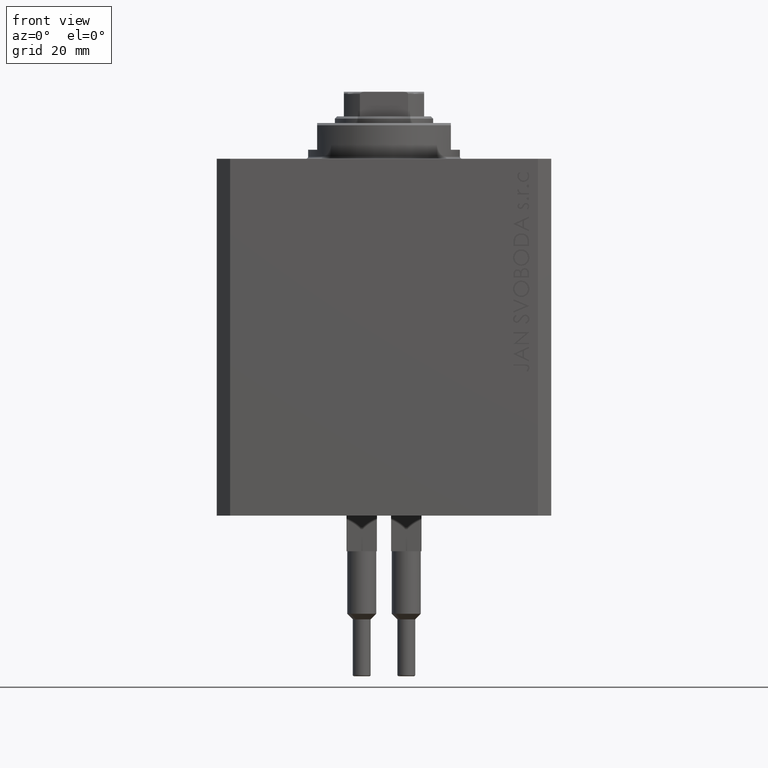
[diagram: clean part render]
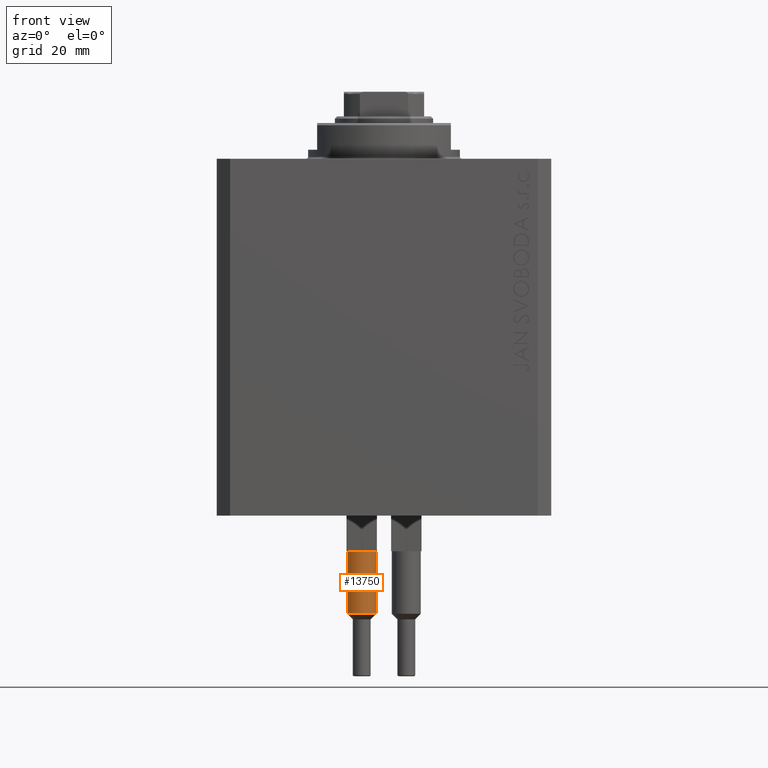
[diagram: same view with one face highlighted and labeled with its STEP entity id]
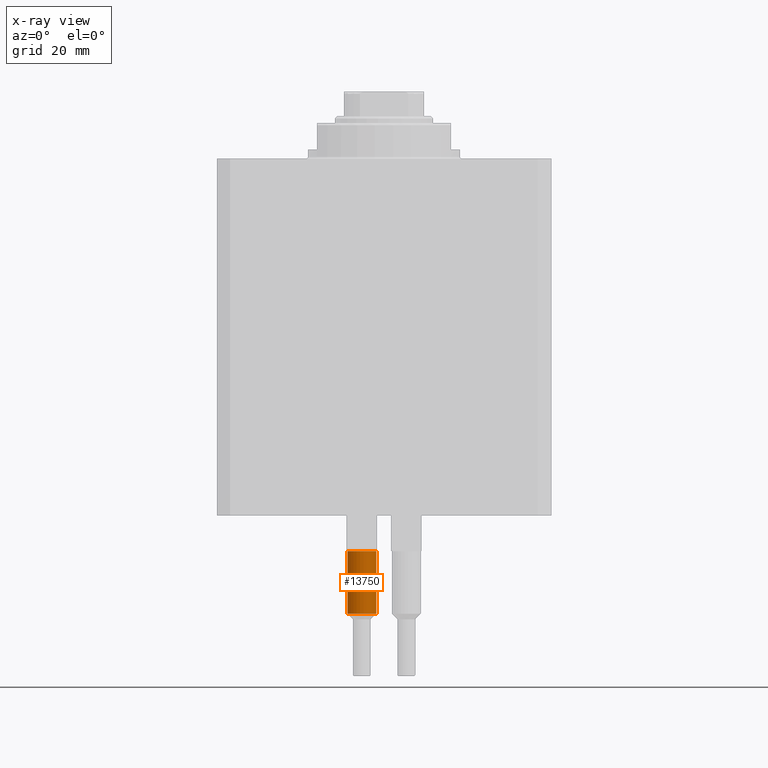
[diagram: x-ray of the same camera — body ghosted, the highlighted face saturated]
A machine part, front view. The second image highlights one B-rep face of the part: STEP entity #13750.
The next image is the same camera in x-ray: the body ghosted, the highlighted face saturated — about 0% of this face is hidden behind the body in this view.
In plain terms, the highlighted cylindrical surface (edge-blend (fillet) strip) has radius 3.25 mm, axis along (-0, -0, 1).
Its self-contained STEP definition (entity closure, byte-faithful):
#1194 = EDGE_CURVE ( 'NONE', #15151, #8644, #21680, .T. ) ;
#1338 = FACE_OUTER_BOUND ( 'NONE', #7800, .T. ) ;
#3413 = DIRECTION ( 'NONE',  ( 1.000000000000000000, 0.000000000000000000, 0.000000000000000000 ) ) ;
#3727 = CARTESIAN_POINT ( 'NONE',  ( 2.883140648667699146, 1.500000000000000000, 40.00000000000000000 ) ) ;
#4521 = VERTEX_POINT ( 'NONE', #8655 ) ;
#4988 = DIRECTION ( 'NONE',  ( -0.000000000000000000, -0.000000000000000000, -1.000000000000000000 ) ) ;
#5524 = AXIS2_PLACEMENT_3D ( 'NONE', #16406, #4988, #19807 ) ;
#6132 = VERTEX_POINT ( 'NONE', #22347 ) ;
#7800 = EDGE_LOOP ( 'NONE', ( #19464, #43533, #44097, #12180, #34972, #27262 ) ) ;
#8644 = VERTEX_POINT ( 'NONE', #44272 ) ;
#8655 = CARTESIAN_POINT ( 'NONE',  ( -3.250000000000000444, 0.000000000000000000, 53.99999999999998579 ) ) ;
#9127 = CARTESIAN_POINT ( 'NONE',  ( 0.000000000000000000, 0.000000000000000000, 40.00000000000000000 ) ) ;
#9413 = AXIS2_PLACEMENT_3D ( 'NONE', #9127, #26620, #19340 ) ;
#9945 = EDGE_CURVE ( 'NONE', #17519, #27907, #22599, .T. ) ;
#10594 = CARTESIAN_POINT ( 'NONE',  ( 0.000000000000000000, 0.000000000000000000, 40.00000000000000000 ) ) ;
#11070 = DIRECTION ( 'NONE',  ( 1.000000000000000000, 0.000000000000000000, 0.000000000000000000 ) ) ;
#12180 = ORIENTED_EDGE ( 'NONE', *, *, #9945, .T. ) ;
#13750 = ADVANCED_FACE ( 'NONE', ( #1338 ), #38251, .T. ) ;
#15151 = VERTEX_POINT ( 'NONE', #16534 ) ;
#16406 = CARTESIAN_POINT ( 'NONE',  ( 0.000000000000000000, 0.000000000000000000, 56.00000000000000000 ) ) ;
#16534 = CARTESIAN_POINT ( 'NONE',  ( 3.250000000000000444, 3.980102097228898231E-16, 53.99999999999998579 ) ) ;
#16843 = EDGE_CURVE ( 'NONE', #4521, #15151, #42074, .T. ) ;
#17519 = VERTEX_POINT ( 'NONE', #3727 ) ;
#17569 = DIRECTION ( 'NONE',  ( -0.000000000000000000, -0.000000000000000000, -1.000000000000000000 ) ) ;
#18205 = DIRECTION ( 'NONE',  ( 1.000000000000000000, 0.000000000000000000, 0.000000000000000000 ) ) ;
#19340 = DIRECTION ( 'NONE',  ( 1.000000000000000000, 0.000000000000000000, 0.000000000000000000 ) ) ;
#19464 = ORIENTED_EDGE ( 'NONE', *, *, #16843, .T. ) ;
#19807 = DIRECTION ( 'NONE',  ( -1.000000000000000000, 0.000000000000000000, 0.000000000000000000 ) ) ;
#20599 = LINE ( 'NONE', #24237, #47099 ) ;
#21196 = CARTESIAN_POINT ( 'NONE',  ( 3.250000000000000444, 3.980102097228898231E-16, 56.00000000000000000 ) ) ;
#21680 = LINE ( 'NONE', #21196, #46087 ) ;
#21746 = DIRECTION ( 'NONE',  ( 0.000000000000000000, 0.000000000000000000, 1.000000000000000000 ) ) ;
#22333 = DIRECTION ( 'NONE',  ( 0.000000000000000000, 0.000000000000000000, 1.000000000000000000 ) ) ;
#22347 = CARTESIAN_POINT ( 'NONE',  ( -3.250000000000000444, 0.000000000000000000, 40.00000000000000000 ) ) ;
#22599 = CIRCLE ( 'NONE', #9413, 3.250000000000000444 ) ;
#23017 = CIRCLE ( 'NONE', #31520, 3.250000000000000444 ) ;
#23030 = CARTESIAN_POINT ( 'NONE',  ( 0.000000000000000000, 0.000000000000000000, 53.99999999999998579 ) ) ;
#24237 = CARTESIAN_POINT ( 'NONE',  ( -3.250000000000000444, 0.000000000000000000, 56.00000000000000000 ) ) ;
#24240 = AXIS2_PLACEMENT_3D ( 'NONE', #23030, #45350, #3413 ) ;
#25803 = CARTESIAN_POINT ( 'NONE',  ( -2.883140648667699146, 1.500000000000000000, 40.00000000000000000 ) ) ;
#26620 = DIRECTION ( 'NONE',  ( 0.000000000000000000, 0.000000000000000000, 1.000000000000000000 ) ) ;
#27262 = ORIENTED_EDGE ( 'NONE', *, *, #34052, .F. ) ;
#27907 = VERTEX_POINT ( 'NONE', #25803 ) ;
#28709 = CIRCLE ( 'NONE', #43449, 3.250000000000000444 ) ;
#30492 = EDGE_CURVE ( 'NONE', #27907, #6132, #23017, .T. ) ;
#31520 = AXIS2_PLACEMENT_3D ( 'NONE', #10594, #21746, #11070 ) ;
#32759 = CARTESIAN_POINT ( 'NONE',  ( 0.000000000000000000, 0.000000000000000000, 40.00000000000000000 ) ) ;
#34052 = EDGE_CURVE ( 'NONE', #4521, #6132, #20599, .T. ) ;
#34930 = DIRECTION ( 'NONE',  ( -0.000000000000000000, -0.000000000000000000, -1.000000000000000000 ) ) ;
#34972 = ORIENTED_EDGE ( 'NONE', *, *, #30492, .T. ) ;
#38251 = CYLINDRICAL_SURFACE ( 'NONE', #5524, 3.250000000000000444 ) ;
#39844 = EDGE_CURVE ( 'NONE', #8644, #17519, #28709, .T. ) ;
#42074 = CIRCLE ( 'NONE', #24240, 3.250000000000000444 ) ;
#43449 = AXIS2_PLACEMENT_3D ( 'NONE', #32759, #22333, #18205 ) ;
#43533 = ORIENTED_EDGE ( 'NONE', *, *, #1194, .T. ) ;
#44097 = ORIENTED_EDGE ( 'NONE', *, *, #39844, .T. ) ;
#44272 = CARTESIAN_POINT ( 'NONE',  ( 3.250000000000000444, 3.980102097228898231E-16, 40.00000000000000000 ) ) ;
#45350 = DIRECTION ( 'NONE',  ( 0.000000000000000000, 0.000000000000000000, -1.000000000000000000 ) ) ;
#46087 = VECTOR ( 'NONE', #17569, 1000.000000000000000 ) ;
#47099 = VECTOR ( 'NONE', #34930, 1000.000000000000000 ) ;